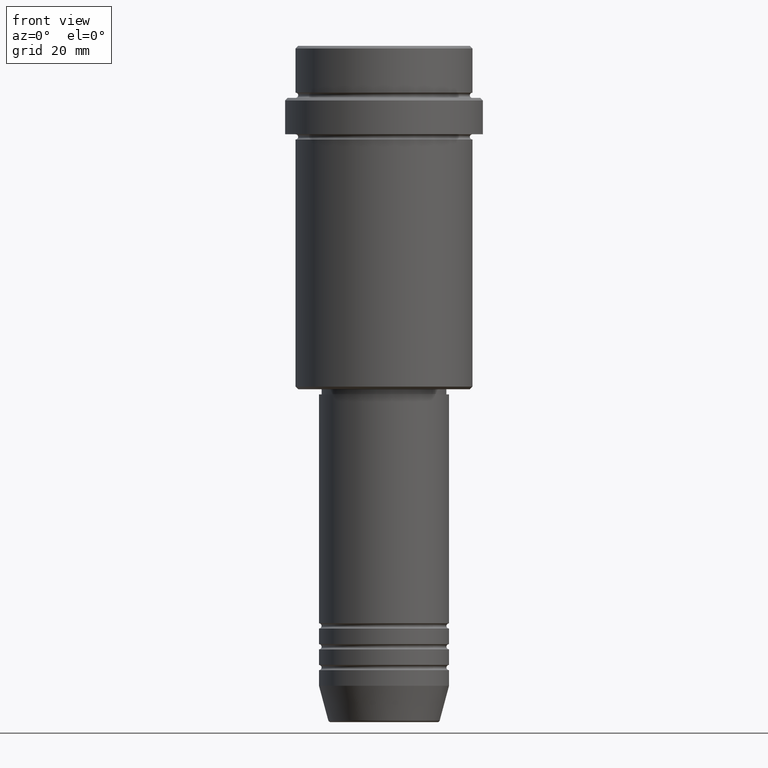
[diagram: clean part render]
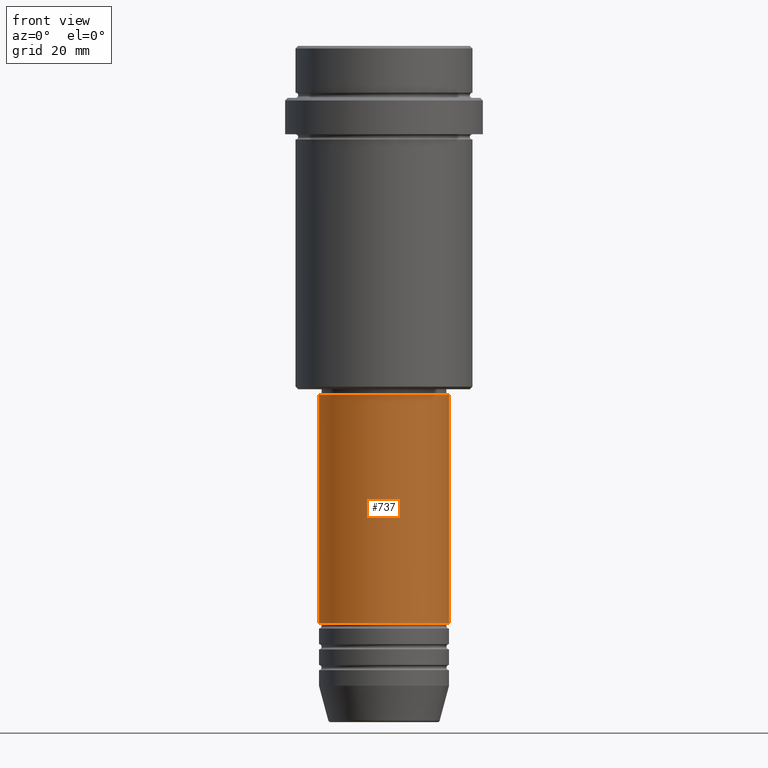
[diagram: same view with one face highlighted and labeled with its STEP entity id]
A machine part, front view. The second image highlights one B-rep face of the part: STEP entity #737.
In plain terms, the highlighted cylindrical surface (partial cylindrical patch) has radius 12.5 mm, axis along (-0, -0, 1).
Its self-contained STEP definition (entity closure, byte-faithful):
#42 = DIRECTION ( 'NONE',  ( -0.000000000000000000, -0.000000000000000000, 1.000000000000000000 ) ) ;
#54 = VERTEX_POINT ( 'NONE', #229 ) ;
#81 = EDGE_CURVE ( 'NONE', #1314, #581, #1206, .T. ) ;
#131 = FACE_OUTER_BOUND ( 'NONE', #173, .T. ) ;
#141 = AXIS2_PLACEMENT_3D ( 'NONE', #1012, #42, #894 ) ;
#173 = EDGE_LOOP ( 'NONE', ( #891, #463, #1408, #1412 ) ) ;
#190 = VERTEX_POINT ( 'NONE', #1149 ) ;
#229 = CARTESIAN_POINT ( 'NONE',  ( -12.50000000000000000, 1.530808498934191521E-15, -110.9999999999998721 ) ) ;
#242 = EDGE_CURVE ( 'NONE', #190, #581, #589, .T. ) ;
#271 = AXIS2_PLACEMENT_3D ( 'NONE', #677, #1202, #1119 ) ;
#313 = DIRECTION ( 'NONE',  ( -0.000000000000000000, -0.000000000000000000, 1.000000000000000000 ) ) ;
#342 = CARTESIAN_POINT ( 'NONE',  ( -12.50000000000000000, 1.530808498934191521E-15, -67.00000000000000000 ) ) ;
#403 = DIRECTION ( 'NONE',  ( -0.000000000000000000, -0.000000000000000000, 1.000000000000000000 ) ) ;
#463 = ORIENTED_EDGE ( 'NONE', *, *, #1360, .T. ) ;
#502 = EDGE_CURVE ( 'NONE', #54, #1314, #1190, .T. ) ;
#581 = VERTEX_POINT ( 'NONE', #1088 ) ;
#589 = LINE ( 'NONE', #1041, #1044 ) ;
#675 = CIRCLE ( 'NONE', #141, 12.50000000000000000 ) ;
#677 = CARTESIAN_POINT ( 'NONE',  ( 0.000000000000000000, 0.000000000000000000, -67.00000000000000000 ) ) ;
#690 = VECTOR ( 'NONE', #403, 1000.000000000000000 ) ;
#737 = ADVANCED_FACE ( 'NONE', ( #131 ), #1024, .T. ) ;
#801 = DIRECTION ( 'NONE',  ( -0.000000000000000000, -0.000000000000000000, 1.000000000000000000 ) ) ;
#891 = ORIENTED_EDGE ( 'NONE', *, *, #502, .F. ) ;
#894 = DIRECTION ( 'NONE',  ( 1.000000000000000000, 0.000000000000000000, 0.000000000000000000 ) ) ;
#907 = CARTESIAN_POINT ( 'NONE',  ( 0.000000000000000000, 0.000000000000000000, 0.000000000000000000 ) ) ;
#999 = AXIS2_PLACEMENT_3D ( 'NONE', #907, #313, #1363 ) ;
#1012 = CARTESIAN_POINT ( 'NONE',  ( 0.000000000000000000, 0.000000000000000000, -110.9999999999998721 ) ) ;
#1024 = CYLINDRICAL_SURFACE ( 'NONE', #999, 12.50000000000000000 ) ;
#1041 = CARTESIAN_POINT ( 'NONE',  ( 12.50000000000000000, 0.000000000000000000, 0.000000000000000000 ) ) ;
#1044 = VECTOR ( 'NONE', #801, 1000.000000000000000 ) ;
#1088 = CARTESIAN_POINT ( 'NONE',  ( 12.50000000000000000, 0.000000000000000000, -67.00000000000000000 ) ) ;
#1119 = DIRECTION ( 'NONE',  ( 1.000000000000000000, 0.000000000000000000, 0.000000000000000000 ) ) ;
#1149 = CARTESIAN_POINT ( 'NONE',  ( 12.50000000000000000, 0.000000000000000000, -110.9999999999998721 ) ) ;
#1190 = LINE ( 'NONE', #1413, #690 ) ;
#1202 = DIRECTION ( 'NONE',  ( -0.000000000000000000, -0.000000000000000000, 1.000000000000000000 ) ) ;
#1206 = CIRCLE ( 'NONE', #271, 12.50000000000000000 ) ;
#1314 = VERTEX_POINT ( 'NONE', #342 ) ;
#1360 = EDGE_CURVE ( 'NONE', #54, #190, #675, .T. ) ;
#1363 = DIRECTION ( 'NONE',  ( 1.000000000000000000, 0.000000000000000000, 0.000000000000000000 ) ) ;
#1408 = ORIENTED_EDGE ( 'NONE', *, *, #242, .T. ) ;
#1412 = ORIENTED_EDGE ( 'NONE', *, *, #81, .F. ) ;
#1413 = CARTESIAN_POINT ( 'NONE',  ( -12.50000000000000000, 1.530808498934191521E-15, 0.000000000000000000 ) ) ;